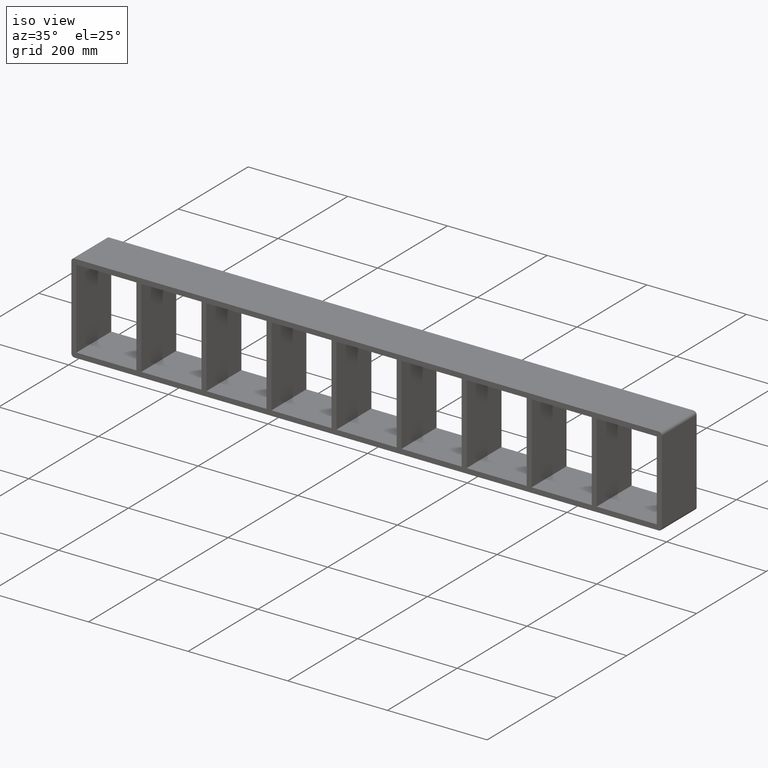
[diagram: clean part render]
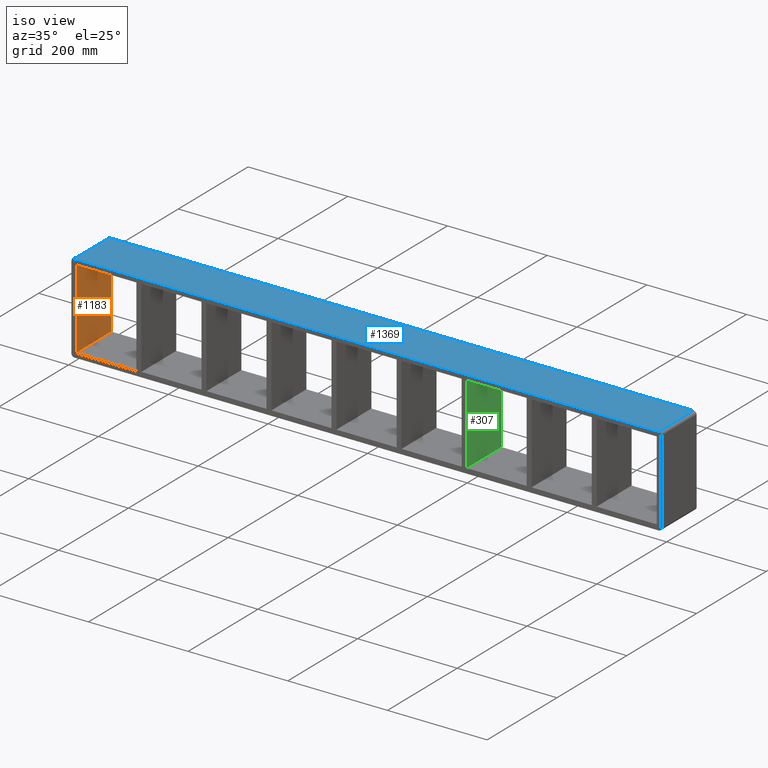
[diagram: same view with three faces highlighted in distinct colors, each labeled with its STEP entity id]
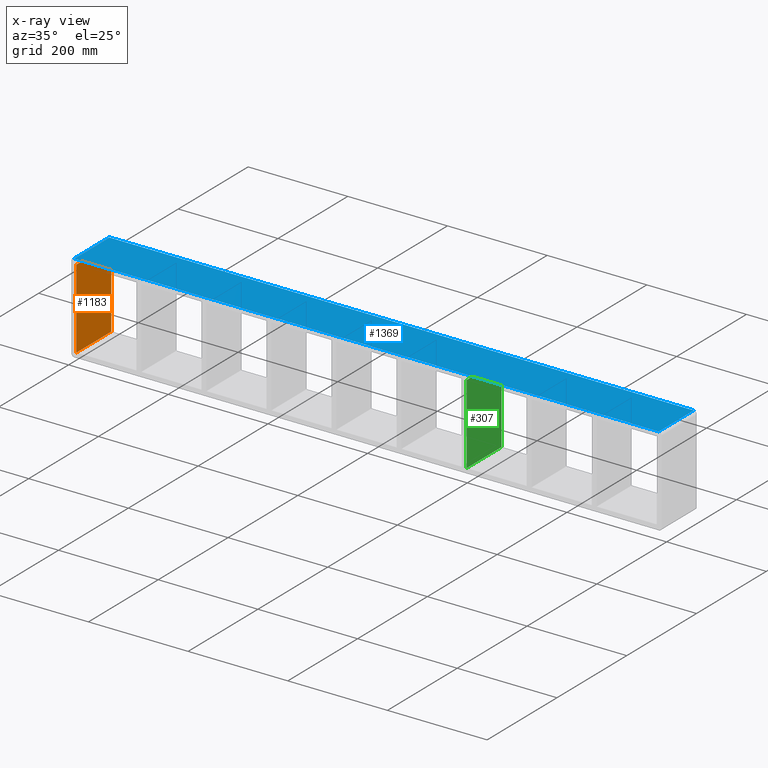
[diagram: x-ray of the same camera — body ghosted, the three highlighted faces saturated]
A machine part, iso view with three faces highlighted in distinct colors.
The next image is the same camera in x-ray (body ghosted, the three faces saturated) — at least one of them is partly hidden behind the body in this view.
Their STEP definitions:

[orange] entity #1183 — the highlighted planar face has unit normal (-1, 0, 0).
#1084=CARTESIAN_POINT('',(-582.25,97.0,-79.750000000000014));
#1085=VERTEX_POINT('',#1084);
#1092=CARTESIAN_POINT('',(-582.25,-3.0,-79.750000000000014));
#1093=VERTEX_POINT('',#1092);
#1094=CARTESIAN_POINT('',(-582.25,-3.0,-79.750000000000014));
#1095=DIRECTION('',(0.0,1.0,0.0));
#1096=VECTOR('',#1095,100.0);
#1097=LINE('',#1094,#1096);
#1098=EDGE_CURVE('',#1093,#1085,#1097,.T.);
#1115=CARTESIAN_POINT('',(-582.25,-3.0,79.75));
#1116=VERTEX_POINT('',#1115);
#1123=CARTESIAN_POINT('',(-582.25,97.0,79.75));
#1124=VERTEX_POINT('',#1123);
#1125=CARTESIAN_POINT('',(-582.25,-3.0,79.75));
#1126=DIRECTION('',(0.0,1.0,0.0));
#1127=VECTOR('',#1126,100.0);
#1128=LINE('',#1125,#1127);
#1129=EDGE_CURVE('',#1116,#1124,#1128,.T.);
#1162=CARTESIAN_POINT('',(-582.25,0.0,-79.750000000000014));
#1163=DIRECTION('',(-1.0,0.0,0.0));
#1164=DIRECTION('',(0.0,0.0,1.0));
#1165=AXIS2_PLACEMENT_3D('',#1162,#1163,#1164);
#1166=PLANE('',#1165);
#1167=ORIENTED_EDGE('',*,*,#1129,.F.);
#1168=CARTESIAN_POINT('',(-582.25,-3.0,-79.750000000000014));
#1169=DIRECTION('',(0.0,0.0,1.0));
#1170=VECTOR('',#1169,159.5);
#1171=LINE('',#1168,#1170);
#1172=EDGE_CURVE('',#1093,#1116,#1171,.T.);
#1173=ORIENTED_EDGE('',*,*,#1172,.F.);
#1174=ORIENTED_EDGE('',*,*,#1098,.T.);
#1175=CARTESIAN_POINT('',(-582.25,97.0,79.75));
#1176=DIRECTION('',(0.0,0.0,-1.0));
#1177=VECTOR('',#1176,159.5);
#1178=LINE('',#1175,#1177);
#1179=EDGE_CURVE('',#1124,#1085,#1178,.T.);
#1180=ORIENTED_EDGE('',*,*,#1179,.F.);
#1181=EDGE_LOOP('',(#1167,#1173,#1174,#1180));
#1182=FACE_OUTER_BOUND('',#1181,.T.);
#1183=ADVANCED_FACE('',(#1182),#1166,.F.);

[blue] entity #1369 — the highlighted planar face has unit normal (0, 0, 1).
#1199=CARTESIAN_POINT('',(586.25000000000011,-3.0,89.750000000000014));
#1200=VERTEX_POINT('',#1199);
#1208=CARTESIAN_POINT('',(-586.25,-3.0,89.750000000000014));
#1209=VERTEX_POINT('',#1208);
#1210=CARTESIAN_POINT('',(586.25000000000023,-3.0,89.750000000000014));
#1211=DIRECTION('',(-1.0,0.0,0.0));
#1212=VECTOR('',#1211,1172.5000000000002);
#1213=LINE('',#1210,#1212);
#1214=EDGE_CURVE('',#1200,#1209,#1213,.T.);
#1327=CARTESIAN_POINT('',(586.25000000000011,97.0,89.750000000000014));
#1328=VERTEX_POINT('',#1327);
#1336=CARTESIAN_POINT('',(586.25000000000011,-3.0,89.750000000000014));
#1337=DIRECTION('',(0.0,1.0,0.0));
#1338=VECTOR('',#1337,100.0);
#1339=LINE('',#1336,#1338);
#1340=EDGE_CURVE('',#1200,#1328,#1339,.T.);
#1346=CARTESIAN_POINT('',(-586.25,0.0,89.750000000000014));
#1347=DIRECTION('',(0.0,0.0,1.0));
#1348=DIRECTION('',(1.0,0.0,0.0));
#1349=AXIS2_PLACEMENT_3D('',#1346,#1347,#1348);
#1350=PLANE('',#1349);
#1351=ORIENTED_EDGE('',*,*,#1340,.T.);
#1352=CARTESIAN_POINT('',(-586.25,97.0,89.750000000000014));
#1353=VERTEX_POINT('',#1352);
#1354=CARTESIAN_POINT('',(-586.25,97.0,89.750000000000014));
#1355=DIRECTION('',(1.0,0.0,0.0));
#1356=VECTOR('',#1355,1172.5000000000002);
#1357=LINE('',#1354,#1356);
#1358=EDGE_CURVE('',#1353,#1328,#1357,.T.);
#1359=ORIENTED_EDGE('',*,*,#1358,.F.);
#1360=CARTESIAN_POINT('',(-586.25,-3.0,89.750000000000014));
#1361=DIRECTION('',(0.0,1.0,0.0));
#1362=VECTOR('',#1361,100.0);
#1363=LINE('',#1360,#1362);
#1364=EDGE_CURVE('',#1209,#1353,#1363,.T.);
#1365=ORIENTED_EDGE('',*,*,#1364,.F.);
#1366=ORIENTED_EDGE('',*,*,#1214,.F.);
#1367=EDGE_LOOP('',(#1351,#1359,#1365,#1366));
#1368=FACE_OUTER_BOUND('',#1367,.T.);
#1369=ADVANCED_FACE('',(#1368),#1350,.T.);

[green] entity #307 — the highlighted planar face has unit normal (1, 0, 0).
#268=CARTESIAN_POINT('',(200.74999999999366,-3.0,79.75));
#269=DIRECTION('',(1.0,0.0,0.0));
#270=DIRECTION('',(0.0,0.0,-1.0));
#271=AXIS2_PLACEMENT_3D('',#268,#269,#270);
#272=PLANE('',#271);
#273=CARTESIAN_POINT('',(200.74999999999366,-3.0,79.75));
#274=VERTEX_POINT('',#273);
#275=CARTESIAN_POINT('',(200.74999999999366,-3.0,-79.750000000003766));
#276=VERTEX_POINT('',#275);
#277=CARTESIAN_POINT('',(200.74999999999366,-3.0,79.75));
#278=DIRECTION('',(0.0,0.0,-1.0));
#279=VECTOR('',#278,159.50000000000375);
#280=LINE('',#277,#279);
#281=EDGE_CURVE('',#274,#276,#280,.T.);
#282=ORIENTED_EDGE('',*,*,#281,.T.);
#283=CARTESIAN_POINT('',(200.74999999999366,97.0,-79.750000000003766));
#284=VERTEX_POINT('',#283);
#285=CARTESIAN_POINT('',(200.74999999999363,97.0,-79.750000000000014));
#286=DIRECTION('',(0.0,-1.0,0.0));
#287=VECTOR('',#286,100.0);
#288=LINE('',#285,#287);
#289=EDGE_CURVE('',#284,#276,#288,.T.);
#290=ORIENTED_EDGE('',*,*,#289,.F.);
#291=CARTESIAN_POINT('',(200.74999999999366,97.0,79.75));
#292=VERTEX_POINT('',#291);
#293=CARTESIAN_POINT('',(200.74999999999366,97.0,79.75));
#294=DIRECTION('',(0.0,0.0,-1.0));
#295=VECTOR('',#294,159.50000000000375);
#296=LINE('',#293,#295);
#297=EDGE_CURVE('',#292,#284,#296,.T.);
#298=ORIENTED_EDGE('',*,*,#297,.F.);
#299=CARTESIAN_POINT('',(200.74999999999363,-3.0,79.75));
#300=DIRECTION('',(0.0,1.0,0.0));
#301=VECTOR('',#300,100.0);
#302=LINE('',#299,#301);
#303=EDGE_CURVE('',#274,#292,#302,.T.);
#304=ORIENTED_EDGE('',*,*,#303,.F.);
#305=EDGE_LOOP('',(#282,#290,#298,#304));
#306=FACE_OUTER_BOUND('',#305,.T.);
#307=ADVANCED_FACE('',(#306),#272,.T.);